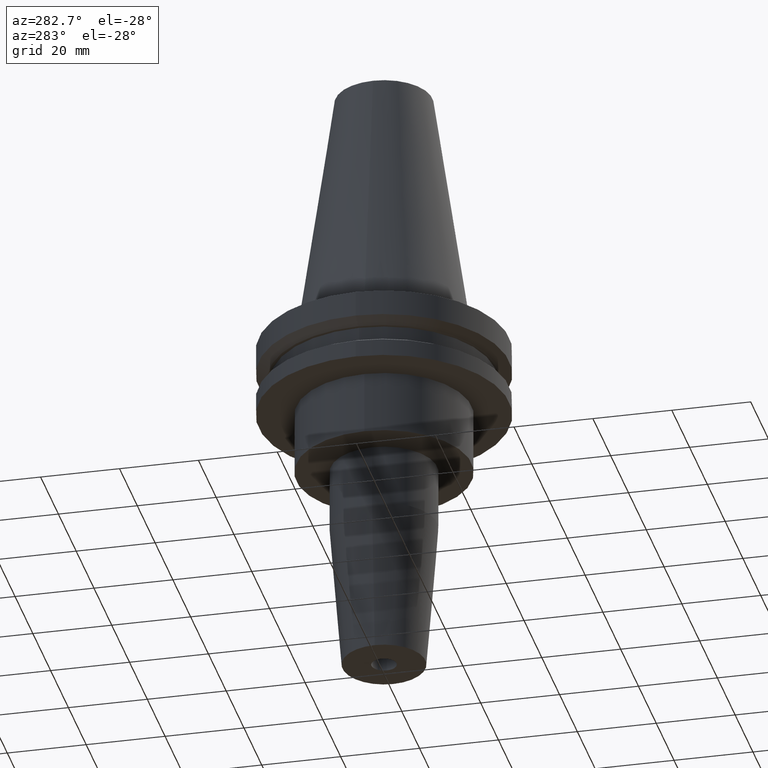
[diagram: clean part render]
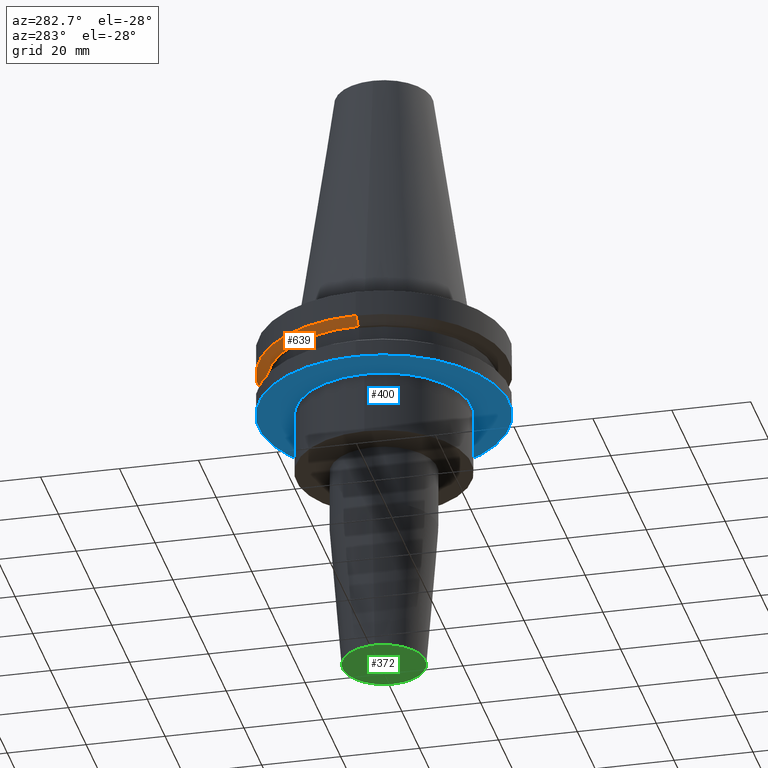
[diagram: same view with three faces highlighted in distinct colors, each labeled with its STEP entity id]
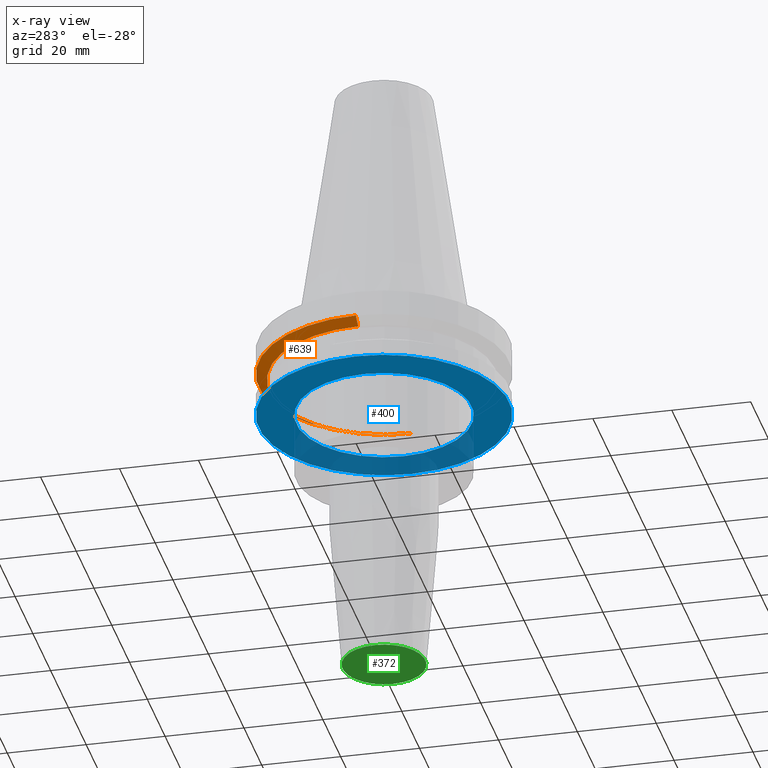
[diagram: x-ray of the same camera — body ghosted, the three highlighted faces saturated]
A machine part, auxiliary view with three faces highlighted in distinct colors.
The next image is the same camera in x-ray (body ghosted, the three faces saturated) — at least one of them is partly hidden behind the body in this view.
Their STEP definitions:

[orange] entity #639 — the highlighted conical surface has half-angle 60 deg.
#33 = AXIS2_PLACEMENT_3D ( 'NONE', #455, #645, #322 ) ;
#60 = DIRECTION ( 'NONE',  ( 0.8660254037844389297, 0.000000000000000000, 0.4999999999999995004 ) ) ;
#64 = VERTEX_POINT ( 'NONE', #792 ) ;
#75 = ORIENTED_EDGE ( 'NONE', *, *, #254, .T. ) ;
#84 = CARTESIAN_POINT ( 'NONE',  ( 31.75000000000000000, 0.000000000000000000, -7.605276606597335842 ) ) ;
#158 = ORIENTED_EDGE ( 'NONE', *, *, #538, .F. ) ;
#200 = DIRECTION ( 'NONE',  ( 1.000000000000000000, 0.000000000000000000, 0.000000000000000000 ) ) ;
#221 = EDGE_CURVE ( 'NONE', #64, #825, #478, .T. ) ;
#254 = EDGE_CURVE ( 'NONE', #336, #64, #662, .T. ) ;
#269 = VERTEX_POINT ( 'NONE', #84 ) ;
#284 = CARTESIAN_POINT ( 'NONE',  ( 28.97919780457007732, 0.000000000000000000, -9.205000000000005400 ) ) ;
#288 = AXIS2_PLACEMENT_3D ( 'NONE', #743, #733, #200 ) ;
#322 = DIRECTION ( 'NONE',  ( 1.000000000000000000, 0.000000000000000000, 0.000000000000000000 ) ) ;
#336 = VERTEX_POINT ( 'NONE', #284 ) ;
#359 = VECTOR ( 'NONE', #665, 1000.000000000000000 ) ;
#366 = DIRECTION ( 'NONE',  ( -0.000000000000000000, -0.000000000000000000, 1.000000000000000000 ) ) ;
#377 = EDGE_CURVE ( 'NONE', #269, #825, #605, .T. ) ;
#383 = LINE ( 'NONE', #508, #402 ) ;
#402 = VECTOR ( 'NONE', #60, 1000.000000000000000 ) ;
#440 = ORIENTED_EDGE ( 'NONE', *, *, #377, .F. ) ;
#455 = CARTESIAN_POINT ( 'NONE',  ( 0.000000000000000000, 0.000000000000000000, -9.205000000000005400 ) ) ;
#478 = LINE ( 'NONE', #799, #359 ) ;
#479 = ORIENTED_EDGE ( 'NONE', *, *, #221, .T. ) ;
#494 = CONICAL_SURFACE ( 'NONE', #33, 28.97919780457007732, 1.047197551196598297 ) ;
#508 = CARTESIAN_POINT ( 'NONE',  ( 28.97919780457007732, 0.000000000000000000, -9.205000000000005400 ) ) ;
#538 = EDGE_CURVE ( 'NONE', #336, #269, #383, .T. ) ;
#605 = CIRCLE ( 'NONE', #646, 31.75000000000000000 ) ;
#617 = CARTESIAN_POINT ( 'NONE',  ( -31.75000000000000000, 3.888253587292846476E-15, -7.605276606597335842 ) ) ;
#639 = ADVANCED_FACE ( 'NONE', ( #700 ), #494, .T. ) ;
#645 = DIRECTION ( 'NONE',  ( -0.000000000000000000, -0.000000000000000000, 1.000000000000000000 ) ) ;
#646 = AXIS2_PLACEMENT_3D ( 'NONE', #822, #366, #838 ) ;
#662 = CIRCLE ( 'NONE', #288, 28.97919780457007732 ) ;
#665 = DIRECTION ( 'NONE',  ( -0.8660254037844389297, 1.060575238724907285E-16, 0.4999999999999995004 ) ) ;
#700 = FACE_OUTER_BOUND ( 'NONE', #824, .T. ) ;
#733 = DIRECTION ( 'NONE',  ( -0.000000000000000000, -0.000000000000000000, 1.000000000000000000 ) ) ;
#743 = CARTESIAN_POINT ( 'NONE',  ( 0.000000000000000000, 0.000000000000000000, -9.205000000000005400 ) ) ;
#792 = CARTESIAN_POINT ( 'NONE',  ( -28.97919780457007732, 3.718590885307660666E-15, -9.205000000000005400 ) ) ;
#799 = CARTESIAN_POINT ( 'NONE',  ( -28.97919780457007732, 3.548928183322474856E-15, -9.205000000000005400 ) ) ;
#822 = CARTESIAN_POINT ( 'NONE',  ( 0.000000000000000000, 0.000000000000000000, -7.605276606597335842 ) ) ;
#824 = EDGE_LOOP ( 'NONE', ( #75, #479, #440, #158 ) ) ;
#825 = VERTEX_POINT ( 'NONE', #617 ) ;
#838 = DIRECTION ( 'NONE',  ( 1.000000000000000000, 0.000000000000000000, 0.000000000000000000 ) ) ;

[blue] entity #400 — the highlighted planar face has unit normal (0, -0, 1).
#2 = CIRCLE ( 'NONE', #480, 31.74999999999999289 ) ;
#38 = VERTEX_POINT ( 'NONE', #168 ) ;
#39 = CARTESIAN_POINT ( 'NONE',  ( 0.000000000000000000, 31.74999999999999289, -19.04999999999999716 ) ) ;
#72 = DIRECTION ( 'NONE',  ( -0.000000000000000000, -0.000000000000000000, 1.000000000000000000 ) ) ;
#74 = CARTESIAN_POINT ( 'NONE',  ( 22.22500000000000142, 0.000000000000000000, -19.04999999999999716 ) ) ;
#86 = FACE_BOUND ( 'NONE', #212, .T. ) ;
#94 = DIRECTION ( 'NONE',  ( 1.000000000000000000, 0.000000000000000000, 0.000000000000000000 ) ) ;
#124 = ORIENTED_EDGE ( 'NONE', *, *, #208, .F. ) ;
#131 = VERTEX_POINT ( 'NONE', #788 ) ;
#141 = DIRECTION ( 'NONE',  ( 1.000000000000000000, 0.000000000000000000, 0.000000000000000000 ) ) ;
#148 = DIRECTION ( 'NONE',  ( -0.000000000000000000, -0.000000000000000000, 1.000000000000000000 ) ) ;
#152 = CIRCLE ( 'NONE', #264, 22.22500000000000142 ) ;
#161 = FACE_OUTER_BOUND ( 'NONE', #425, .T. ) ;
#165 = AXIS2_PLACEMENT_3D ( 'NONE', #311, #769, #191 ) ;
#168 = CARTESIAN_POINT ( 'NONE',  ( 31.74999999999999289, 0.000000000000000000, -19.04999999999999716 ) ) ;
#172 = ORIENTED_EDGE ( 'NONE', *, *, #693, .T. ) ;
#191 = DIRECTION ( 'NONE',  ( 1.000000000000000000, 0.000000000000000000, 0.000000000000000000 ) ) ;
#202 = ORIENTED_EDGE ( 'NONE', *, *, #614, .F. ) ;
#207 = CIRCLE ( 'NONE', #689, 22.22500000000000142 ) ;
#208 = EDGE_CURVE ( 'NONE', #131, #38, #2, .T. ) ;
#212 = EDGE_LOOP ( 'NONE', ( #813, #172 ) ) ;
#264 = AXIS2_PLACEMENT_3D ( 'NONE', #408, #148, #669 ) ;
#301 = PLANE ( 'NONE',  #712 ) ;
#311 = CARTESIAN_POINT ( 'NONE',  ( 0.000000000000000000, 0.000000000000000000, -19.04999999999999716 ) ) ;
#351 = DIRECTION ( 'NONE',  ( -0.000000000000000000, -0.000000000000000000, 1.000000000000000000 ) ) ;
#400 = ADVANCED_FACE ( 'NONE', ( #161, #86 ), #301, .F. ) ;
#408 = CARTESIAN_POINT ( 'NONE',  ( 0.000000000000000000, 0.000000000000000000, -19.04999999999999716 ) ) ;
#425 = EDGE_LOOP ( 'NONE', ( #202, #124 ) ) ;
#480 = AXIS2_PLACEMENT_3D ( 'NONE', #779, #72, #141 ) ;
#535 = CARTESIAN_POINT ( 'NONE',  ( 0.000000000000000000, 0.000000000000000000, -19.04999999999999716 ) ) ;
#551 = CIRCLE ( 'NONE', #165, 31.74999999999999289 ) ;
#607 = DIRECTION ( 'NONE',  ( 1.000000000000000000, 0.000000000000000000, 0.000000000000000000 ) ) ;
#614 = EDGE_CURVE ( 'NONE', #38, #131, #551, .T. ) ;
#669 = DIRECTION ( 'NONE',  ( 1.000000000000000000, 0.000000000000000000, 0.000000000000000000 ) ) ;
#687 = VERTEX_POINT ( 'NONE', #846 ) ;
#689 = AXIS2_PLACEMENT_3D ( 'NONE', #535, #351, #607 ) ;
#690 = DIRECTION ( 'NONE',  ( 0.000000000000000000, -0.000000000000000000, 1.000000000000000000 ) ) ;
#693 = EDGE_CURVE ( 'NONE', #687, #790, #207, .T. ) ;
#712 = AXIS2_PLACEMENT_3D ( 'NONE', #39, #690, #94 ) ;
#769 = DIRECTION ( 'NONE',  ( -0.000000000000000000, -0.000000000000000000, 1.000000000000000000 ) ) ;
#779 = CARTESIAN_POINT ( 'NONE',  ( 0.000000000000000000, 0.000000000000000000, -19.04999999999999716 ) ) ;
#783 = EDGE_CURVE ( 'NONE', #790, #687, #152, .T. ) ;
#788 = CARTESIAN_POINT ( 'NONE',  ( -31.74999999999999289, 3.888253587292845687E-15, -19.04999999999999716 ) ) ;
#790 = VERTEX_POINT ( 'NONE', #74 ) ;
#813 = ORIENTED_EDGE ( 'NONE', *, *, #783, .T. ) ;
#846 = CARTESIAN_POINT ( 'NONE',  ( -22.22500000000000142, 2.721777511104992849E-15, -19.04999999999999716 ) ) ;

[green] entity #372 — the highlighted planar face has unit normal (0, -0, 1).
#1 = ORIENTED_EDGE ( 'NONE', *, *, #406, .F. ) ;
#12 = PLANE ( 'NONE',  #467 ) ;
#40 = VERTEX_POINT ( 'NONE', #770 ) ;
#44 = CIRCLE ( 'NONE', #688, 3.175000000000000711 ) ;
#70 = CARTESIAN_POINT ( 'NONE',  ( -10.50000000000000000, 1.469576158976823947E-15, -88.89999999999999147 ) ) ;
#85 = VERTEX_POINT ( 'NONE', #446 ) ;
#167 = DIRECTION ( 'NONE',  ( 0.000000000000000000, -0.000000000000000000, 1.000000000000000000 ) ) ;
#184 = EDGE_CURVE ( 'NONE', #40, #85, #203, .T. ) ;
#203 = CIRCLE ( 'NONE', #800, 3.175000000000000711 ) ;
#214 = FACE_BOUND ( 'NONE', #431, .T. ) ;
#230 = DIRECTION ( 'NONE',  ( 1.000000000000000000, 0.000000000000000000, 0.000000000000000000 ) ) ;
#241 = CARTESIAN_POINT ( 'NONE',  ( 0.000000000000000000, 10.50000000000000000, -88.89999999999999147 ) ) ;
#257 = ORIENTED_EDGE ( 'NONE', *, *, #426, .T. ) ;
#260 = DIRECTION ( 'NONE',  ( -0.000000000000000000, -0.000000000000000000, 1.000000000000000000 ) ) ;
#275 = AXIS2_PLACEMENT_3D ( 'NONE', #765, #834, #424 ) ;
#327 = VERTEX_POINT ( 'NONE', #70 ) ;
#331 = AXIS2_PLACEMENT_3D ( 'NONE', #749, #436, #694 ) ;
#372 = ADVANCED_FACE ( 'NONE', ( #595, #214 ), #12, .F. ) ;
#373 = ORIENTED_EDGE ( 'NONE', *, *, #184, .T. ) ;
#406 = EDGE_CURVE ( 'NONE', #489, #327, #679, .T. ) ;
#424 = DIRECTION ( 'NONE',  ( 1.000000000000000000, 0.000000000000000000, 0.000000000000000000 ) ) ;
#426 = EDGE_CURVE ( 'NONE', #85, #40, #44, .T. ) ;
#431 = EDGE_LOOP ( 'NONE', ( #257, #373 ) ) ;
#436 = DIRECTION ( 'NONE',  ( -0.000000000000000000, -0.000000000000000000, 1.000000000000000000 ) ) ;
#443 = DIRECTION ( 'NONE',  ( 1.000000000000000000, 0.000000000000000000, 0.000000000000000000 ) ) ;
#446 = CARTESIAN_POINT ( 'NONE',  ( 3.175000000000000711, 0.000000000000000000, -88.89999999999999147 ) ) ;
#447 = EDGE_CURVE ( 'NONE', #327, #489, #817, .T. ) ;
#461 = ORIENTED_EDGE ( 'NONE', *, *, #447, .F. ) ;
#467 = AXIS2_PLACEMENT_3D ( 'NONE', #241, #167, #482 ) ;
#482 = DIRECTION ( 'NONE',  ( 1.000000000000000000, 0.000000000000000000, 0.000000000000000000 ) ) ;
#489 = VERTEX_POINT ( 'NONE', #567 ) ;
#497 = DIRECTION ( 'NONE',  ( -0.000000000000000000, -0.000000000000000000, 1.000000000000000000 ) ) ;
#556 = CARTESIAN_POINT ( 'NONE',  ( 0.000000000000000000, 0.000000000000000000, -88.89999999999999147 ) ) ;
#567 = CARTESIAN_POINT ( 'NONE',  ( 10.50000000000000000, 0.000000000000000000, -88.89999999999999147 ) ) ;
#595 = FACE_OUTER_BOUND ( 'NONE', #735, .T. ) ;
#679 = CIRCLE ( 'NONE', #331, 10.50000000000000000 ) ;
#688 = AXIS2_PLACEMENT_3D ( 'NONE', #556, #497, #230 ) ;
#694 = DIRECTION ( 'NONE',  ( 1.000000000000000000, 0.000000000000000000, 0.000000000000000000 ) ) ;
#735 = EDGE_LOOP ( 'NONE', ( #1, #461 ) ) ;
#749 = CARTESIAN_POINT ( 'NONE',  ( 0.000000000000000000, 0.000000000000000000, -88.89999999999999147 ) ) ;
#765 = CARTESIAN_POINT ( 'NONE',  ( 0.000000000000000000, 0.000000000000000000, -88.89999999999999147 ) ) ;
#770 = CARTESIAN_POINT ( 'NONE',  ( -3.175000000000000711, 3.888253587292847561E-16, -88.89999999999999147 ) ) ;
#776 = CARTESIAN_POINT ( 'NONE',  ( 0.000000000000000000, 0.000000000000000000, -88.89999999999999147 ) ) ;
#800 = AXIS2_PLACEMENT_3D ( 'NONE', #776, #260, #443 ) ;
#817 = CIRCLE ( 'NONE', #275, 10.50000000000000000 ) ;
#834 = DIRECTION ( 'NONE',  ( -0.000000000000000000, -0.000000000000000000, 1.000000000000000000 ) ) ;